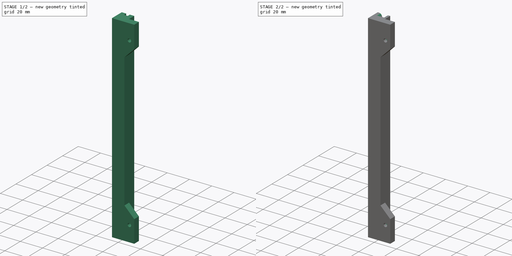
[diagram: build sequence overview — one tinted view per stage of 2, left to right]
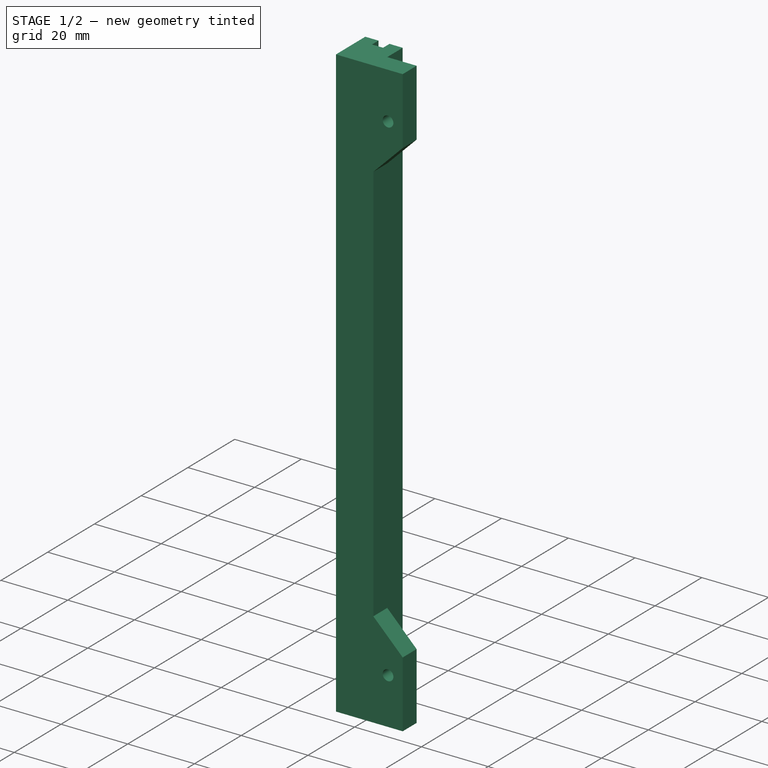
[diagram: stage 1 of 2 — iso view after this stage's code; geometry added in this stage tinted green]
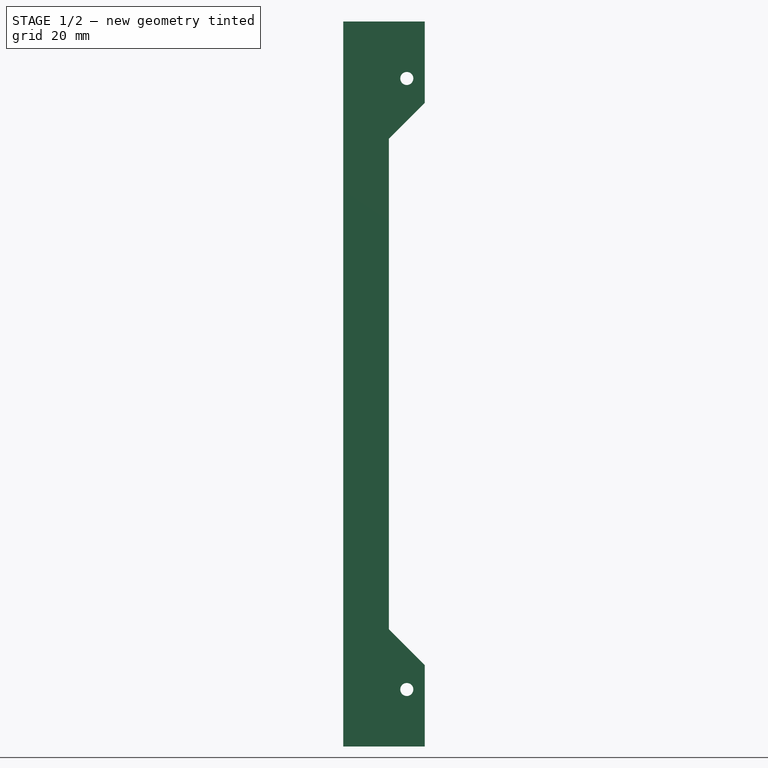
[diagram: stage 1 of 2 — front view after this stage's code; geometry added in this stage tinted green]
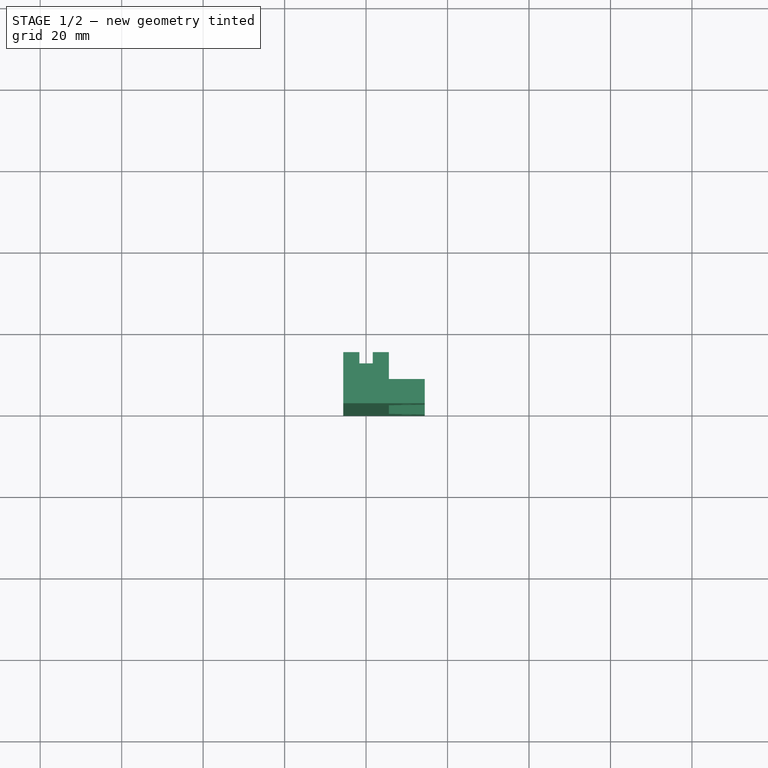
[diagram: stage 1 of 2 — top view after this stage's code; geometry added in this stage tinted green]
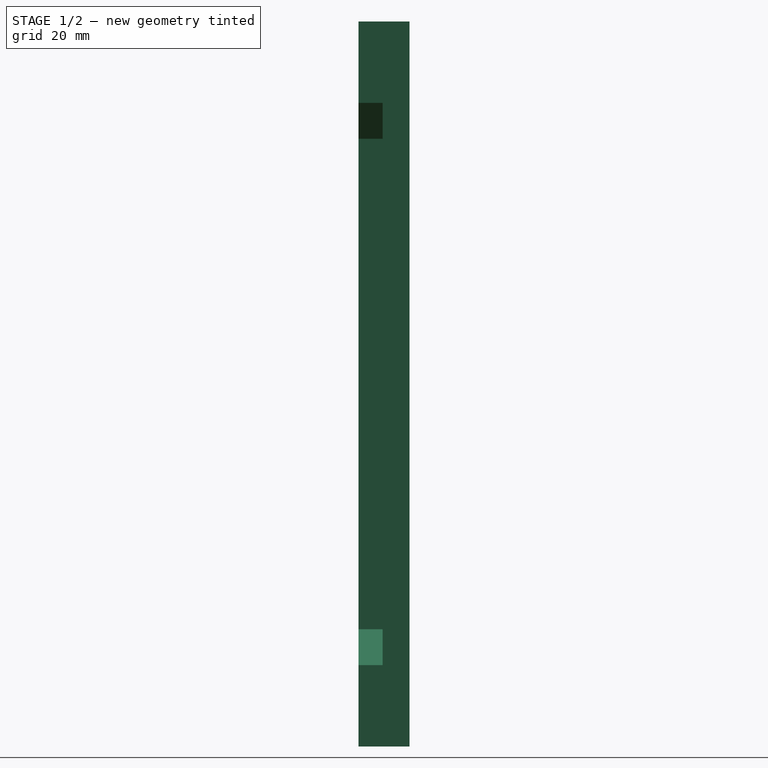
[diagram: stage 1 of 2 — right view after this stage's code; geometry added in this stage tinted green]
FCSTD DOCUMENT  (FreeCAD 0.18R16146 (Git))
Label: 3mm_178mm_150mm_slide_rail
License: All rights reserved
LicenseURL: http://en.wikipedia.org/wiki/All_rights_reserved
objects: Sketcher::SketchObject×3, PartDesign::Pocket×2, PartDesign::Pad×1, PartDesign::Plane×1, PartDesign::Fillet×1, PartDesign::Body×1
note: 12 computed .brp shape members not serialized (recipe doc carries the construction recipe); baked Part::Feature solids carry a one-line shape summary decoded from their .brp

FEATURE [Sketcher::SketchObject] Sketch
  MapMode = 5
  Support = -> [XY_Plane]
  expr: Constraints[39] = Constraints.wall_thickness + 2mm
  expr: Constraints[37] = Constraints.wall_thickness
  sketch-geometry (17):
    g0: LineSegment StartX=-5.6 StartY=0 StartZ=0 EndX=14.4 EndY=0 EndZ=0
    g1: LineSegment [constr] StartX=14.4 StartY=0 StartZ=0 EndX=14.4 EndY=12.55 EndZ=0
    g2: LineSegment [constr] StartX=14.4 StartY=12.55 StartZ=0 EndX=-5.6 EndY=12.55 EndZ=0
    g3: LineSegment StartX=-5.6 StartY=12.55 StartZ=0 EndX=-5.6 EndY=0 EndZ=0
    g4: LineSegment [constr] StartX=-1.65 StartY=12.55 StartZ=0 EndX=1.65 EndY=12.55 EndZ=0
    g5: LineSegment StartX=1.65 StartY=12.55 StartZ=0 EndX=1.65 EndY=9.8 EndZ=0
    g6: LineSegment StartX=1.65 StartY=9.8 StartZ=0 EndX=-1.65 EndY=9.8 EndZ=0
    g7: LineSegment StartX=-1.65 StartY=9.8 StartZ=0 EndX=-1.65 EndY=12.55 EndZ=0
    g8: LineSegment [constr] StartX=5.6 StartY=12.55 StartZ=0 EndX=14.4 EndY=12.55 EndZ=0
    g9: LineSegment [constr] StartX=14.4 StartY=12.55 StartZ=0 EndX=14.4 EndY=5.95 EndZ=0
    g10: LineSegment StartX=14.4 StartY=5.95 StartZ=0 EndX=5.6 EndY=5.95 EndZ=0
    g11: LineSegment StartX=5.6 StartY=5.95 StartZ=0 EndX=5.6 EndY=12.55 EndZ=0
    g12: LineSegment StartX=-5.6 StartY=12.55 StartZ=0 EndX=-1.65 EndY=12.55 EndZ=0
    g13: LineSegment StartX=1.65 StartY=12.55 StartZ=0 EndX=5.6 EndY=12.55 EndZ=0
    g14: LineSegment StartX=14.4 StartY=5.95 StartZ=0 EndX=14.4 EndY=0 EndZ=0
    g15: GeomPoint X=10 Y=5.95 Z=0
    g16: GeomPoint X=6.4 Y=5.95 Z=0
  constraints (47):
    c: Coincident(g0,g1)
    c: Coincident(g1,g2)
    c: Coincident(g2,g3)
    c: Coincident(g3,g0)
    c: Horizontal(g0)
    c: Horizontal(g2)
    c: Vertical(g1)
    c: Vertical(g3)
    c: Coincident(g4,g5)
    c: Coincident(g5,g6)
    c: Coincident(g6,g7)
    c: Coincident(g7,g4)
    c: Horizontal(g4)
    c: Vertical(g5)
    c: Vertical(g7)
    c: PointOnObject(g4,g2)
    c: Coincident(g8,g9)
    c: Coincident(g9,g10)
    c: Coincident(g10,g11)
    c: Coincident(g11,g8)
    c: Horizontal(g8)
    c: Horizontal(g10)
    c: Vertical(g9)
    c: Vertical(g11)
    c: PointOnObject(g8,g2)
    c: PointOnObject(g9,g1)
    c: Coincident(g12,g3)
    c: Coincident(g12,g7)
    c: Coincident(g13,g5)
    c: Coincident(g13,g11)
    c: Symmetric(g5,g6,g-2)
    c: DistanceX(g6,g6) = 3.3  'grove'
    c: Coincident(g14,g10)
    c: Coincident(g14,g0)
    c: PointOnObject(g-1,g0)
    c: DistanceY(g-1,g6) = 9.8
    c: DistanceX(g12,g12) = 3.95  'wall_thickness'
    c: DistanceX(g13,g13) = 3.95
    c: DistanceY(g7,g7) = 2.75
    c: DistanceY(g14,g14) = 5.95
    c: Symmetric(g10,g10,g15)
    c: DistanceX(g-1,g15) = 10  'offset'
    c: PointOnObject(g16,g10)
    c: DistanceX(g16,g10) = 8  'tab_size'
    c: DistanceX(g0,g0) = 20
    c: DistanceX(g10,g16) = 0.8
    c: DistanceY(g3,g3) = 12.55
FEATURE [PartDesign::Pad] Pad
  Length = 178
  Length2 = 100
  Profile = -> Sketch
  Reversed = true
  Type = 0
  expr: Length = 178mm
FEATURE [Sketcher::SketchObject] Sketch001
  ExternalGeometry = -> [Pad]
  MapMode = 5
  Placement = pos=(0,0,0) rot=(1,0,0;1.5708rad)
  Support = -> [Pad]
  expr: Constraints[19] = Constraints.pad_taper
  expr: Constraints[15] = Sketch.Constraints.grove / 2 + Sketch.Constraints.wall_thickness
  expr: Constraints[17] = Constraints.pad_len
  expr: Constraints[9] = Sketch.Constraints.offset
  sketch-geometry (7):
    g0: LineSegment StartX=14.4 StartY=-158 StartZ=0 EndX=5.6 EndY=-149.2 EndZ=0
    g1: LineSegment StartX=5.6 StartY=-149.2 StartZ=0 EndX=5.6 EndY=-28.8 EndZ=0
    g2: LineSegment StartX=5.6 StartY=-28.8 StartZ=0 EndX=14.4 EndY=-20 EndZ=0
    g3: LineSegment StartX=14.4 StartY=-20 StartZ=0 EndX=14.4 EndY=-158 EndZ=0
    g4: Circle CenterX=10 CenterY=-164 CenterZ=0 NormalX=0 NormalY=0 NormalZ=1 AngleXU=0 Radius=1.6
    g5: Circle CenterX=10 CenterY=-14 CenterZ=0 NormalX=0 NormalY=0 NormalZ=1 AngleXU=0 Radius=1.6
    g6: LineSegment [constr] StartX=0 StartY=-89 StartZ=0 EndX=14.4 EndY=-89 EndZ=0
  constraints (21):
    c: Coincident(g0,g1)
    c: Coincident(g1,g2)
    c: Coincident(g2,g3)
    c: Coincident(g3,g0)
    c: Vertical(g1)
    c: Vertical(g3)
    c: PointOnObject(g0,g-3)
    c: Diameter(g4) = 3.2
    c: Equal(g4,g5) = 3.2
    c: DistanceX(g-1,g4) = 10
    c: DistanceY(g4,g5) = 150
    c: DistanceY(g-5,g-4) = 178
    c: PointOnObject(g6,g-2)
    c: Symmetric(g-4,g-5,g6)
    c: Symmetric(g4,g5,g6)
    c: DistanceX(g-1,g1) = 5.6
    c: DistanceY(g2,g-4) = 20  'pad_len'
    c: DistanceY(g-5,g0) = 20
    c: Angle(g2,g3) = 0.785398  'pad_taper'
    c: Angle(g3,g0) = 0.785398
    c: PointOnObject(g6,g3)
FEATURE [PartDesign::Pocket] Pocket
  BaseFeature = -> Pad
  Length = 5
  Length2 = 100
  Profile = -> Sketch001
  Type = 1
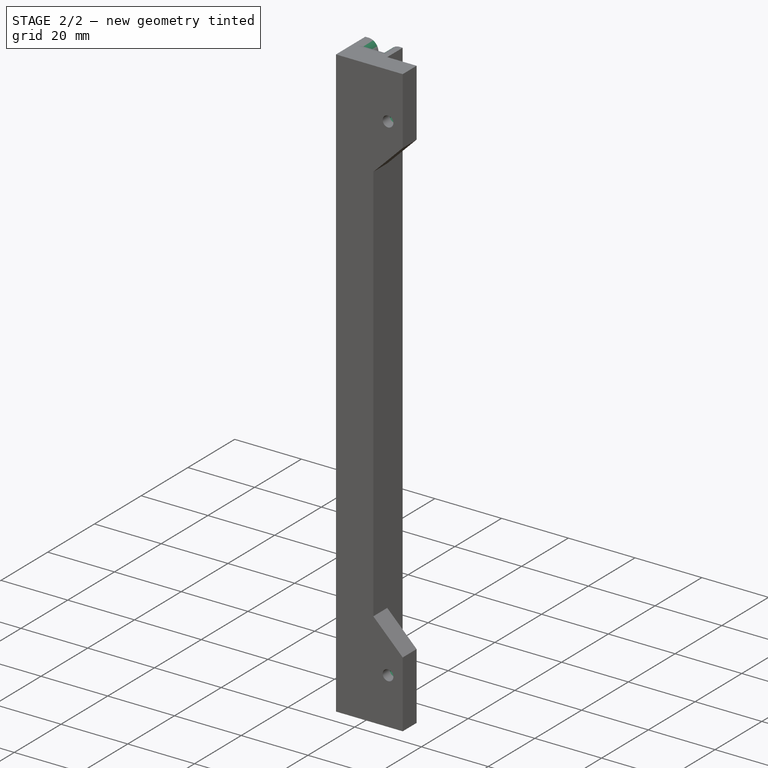
[diagram: stage 2 of 2 — iso view after this stage's code; geometry added in this stage tinted green]
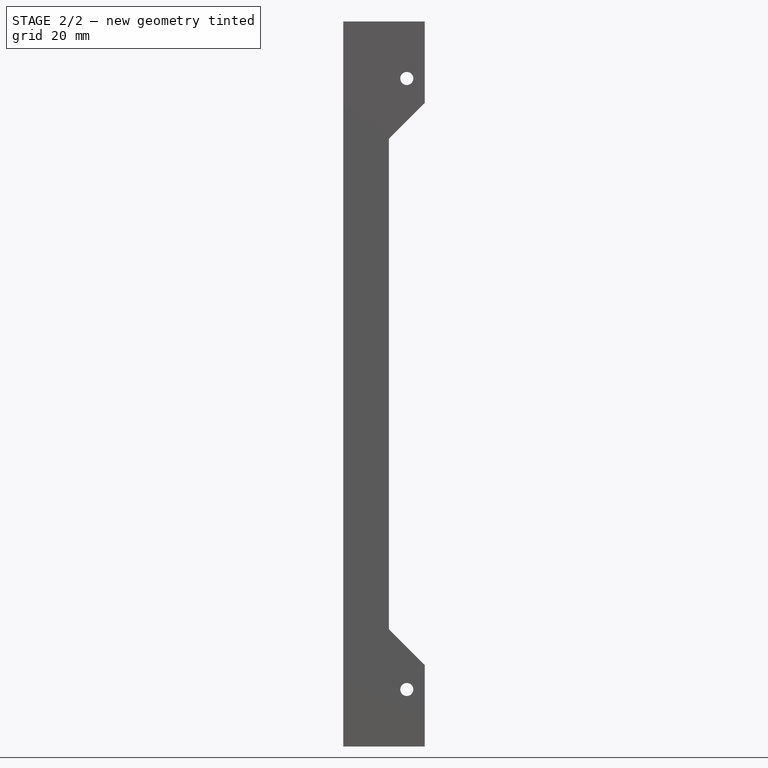
[diagram: stage 2 of 2 — front view after this stage's code; geometry added in this stage tinted green]
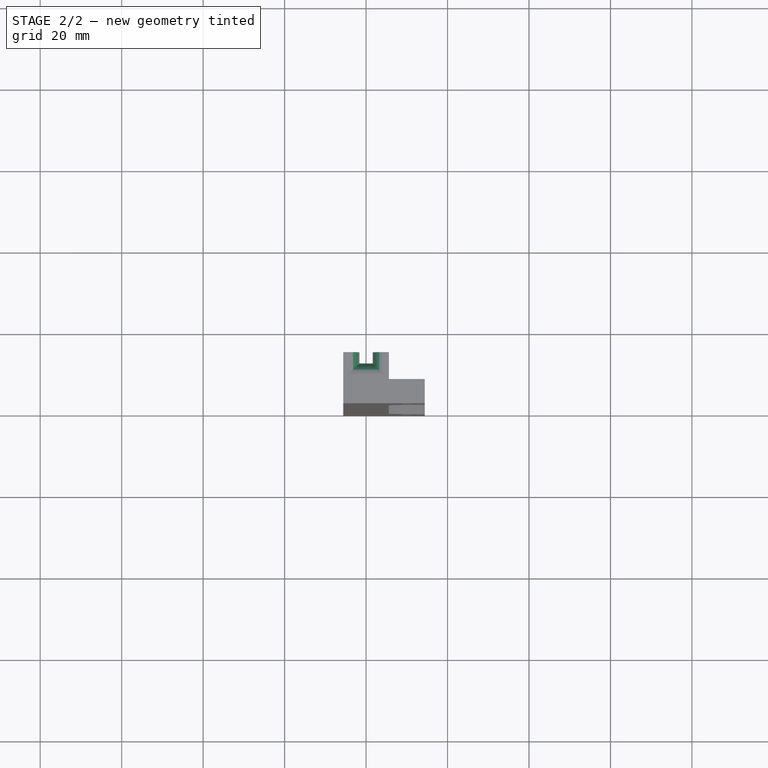
[diagram: stage 2 of 2 — top view after this stage's code; geometry added in this stage tinted green]
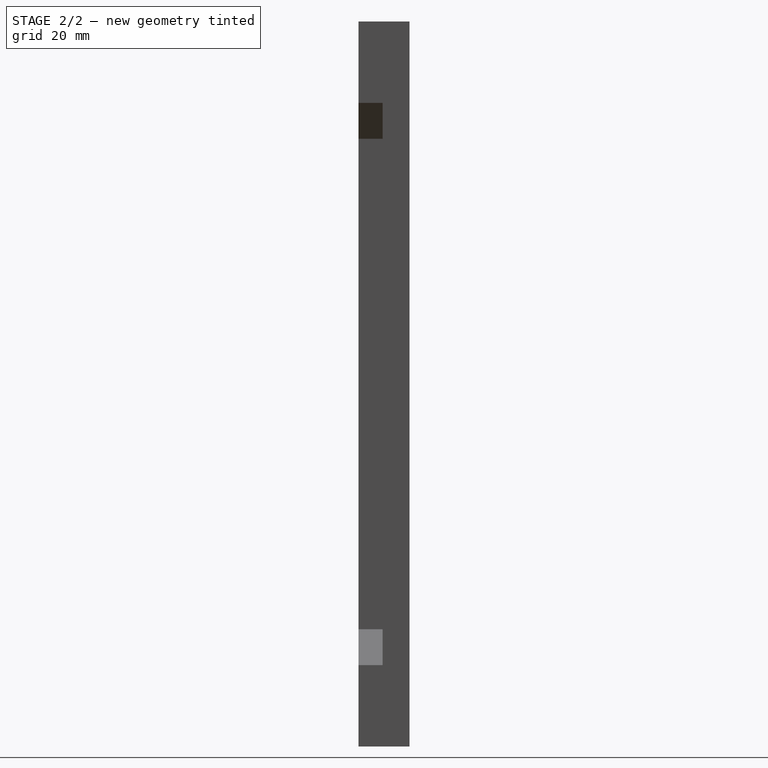
[diagram: stage 2 of 2 — right view after this stage's code; geometry added in this stage tinted green]
FEATURE [PartDesign::Plane] DatumPlane
  AttachmentOffset = pos=(0,0,3) rot=(0,0,1;0rad)
  Length = 37.9458
  MapMode = 5
  Placement = pos=(0,3,-7e-16) rot=(0,0.707107,0.707107;3.14159rad)
  ResizeMode = 0
  Support = -> [Pocket]
  Width = 201.546
FEATURE [Sketcher::SketchObject] Sketch003
  ExternalGeometry = -> [Pocket]
  MapMode = 5
  Placement = pos=(0,3,-7e-16) rot=(0,0.707107,0.707107;3.14159rad)
  Support = -> [DatumPlane]
  expr: Constraints[19] = Constraints.M3_nut_short
  sketch-geometry (14):
    g0: LineSegment StartX=-7.2 StartY=-15.6166 StartZ=0 EndX=-7.2 EndY=-12.3834 EndZ=0
    g1: LineSegment StartX=-7.2 StartY=-12.3834 StartZ=0 EndX=-10 EndY=-10.7668 EndZ=0
    g2: LineSegment StartX=-10 StartY=-10.7668 StartZ=0 EndX=-12.8 EndY=-12.3834 EndZ=0
    g3: LineSegment StartX=-12.8 StartY=-12.3834 StartZ=0 EndX=-12.8 EndY=-15.6166 EndZ=0
    g4: LineSegment StartX=-12.8 StartY=-15.6166 StartZ=0 EndX=-10 EndY=-17.2332 EndZ=0
    g5: LineSegment StartX=-10 StartY=-17.2332 StartZ=0 EndX=-7.2 EndY=-15.6166 EndZ=0
    g6: Circle [constr] CenterX=-10 CenterY=-14 CenterZ=0 NormalX=0 NormalY=0 NormalZ=1 AngleXU=0 Radius=3.23316
    g7: LineSegment StartX=-7.2 StartY=-165.617 StartZ=0 EndX=-7.2 EndY=-162.383 EndZ=0
    g8: LineSegment StartX=-7.2 StartY=-162.383 StartZ=0 EndX=-10 EndY=-160.767 EndZ=0
    g9: LineSegment StartX=-10 StartY=-160.767 StartZ=0 EndX=-12.8 EndY=-162.383 EndZ=0
    g10: LineSegment StartX=-12.8 StartY=-162.383 StartZ=0 EndX=-12.8 EndY=-165.617 EndZ=0
    g11: LineSegment StartX=-12.8 StartY=-165.617 StartZ=0 EndX=-10 EndY=-167.233 EndZ=0
    g12: LineSegment StartX=-10 StartY=-167.233 StartZ=0 EndX=-7.2 EndY=-165.617 EndZ=0
    g13: Circle [constr] CenterX=-10 CenterY=-164 CenterZ=0 NormalX=0 NormalY=0 NormalZ=1 AngleXU=0 Radius=3.23316
  constraints (32):
    c: Coincident(g0,g1)
    c: Coincident(g1,g2)
    c: Coincident(g2,g3)
    c: Coincident(g3,g4)
    c: Coincident(g4,g5)
    c: Coincident(g5,g0)
    c: Equal(g0, g1-g5) x5
    c: PointOnObject(g0,g6)
    c: PointOnObject(g1,g6)
    c: PointOnObject(g2,g6)
    c: PointOnObject(g3,g6)
    c: PointOnObject(g4,g6)
    c: PointOnObject(g5,g6)
    c: Coincident(g6,g-3)
    c: Vertical(g0)
    c: DistanceX(g2,g0) = 5.6
    c: Coincident(g7,g8)
    c: Coincident(g8,g9)
    c: Coincident(g9,g10)
    c: Coincident(g10,g11)
    c: Coincident(g11,g12)
    c: Coincident(g12,g7)
    c: Equal(g7, g8-g12) x5
    c: PointOnObject(g7,g13)
    c: PointOnObject(g8,g13)
    c: PointOnObject(g9,g13)
    c: PointOnObject(g10,g13)
    c: PointOnObject(g11,g13)
    c: PointOnObject(g12,g13)
    c: Vertical(g7)
    c: DistanceX(g9,g7) = 5.6  'M3_nut_short'
    c: Coincident(g13,g-4)
FEATURE [PartDesign::Pocket] Pocket002
  BaseFeature = -> Pocket
  Length = 5
  Length2 = 100
  Profile = -> Sketch003
  Reversed = true
  Type = 0
FEATURE [PartDesign::Fillet] Fillet
  Base = -> Pocket002 [Edge13,Edge11,Edge3,Edge12,Edge20,Edge4]
  BaseFeature = -> Pocket002
  Radius = 3
FEATURE [PartDesign::Body] Body
  Group = -> [Sketch,Pad,Sketch001,Pocket,DatumPlane,Sketch003,Pocket002,Fillet]
  Origin = -> Origin
  Tip = -> Fillet
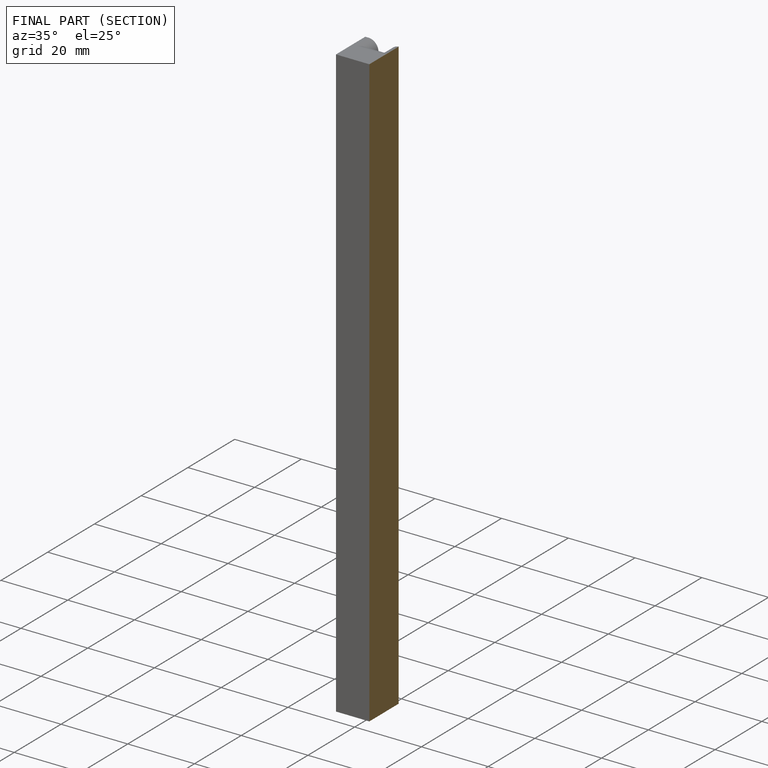
[diagram: finished part — half-section view (interior)]
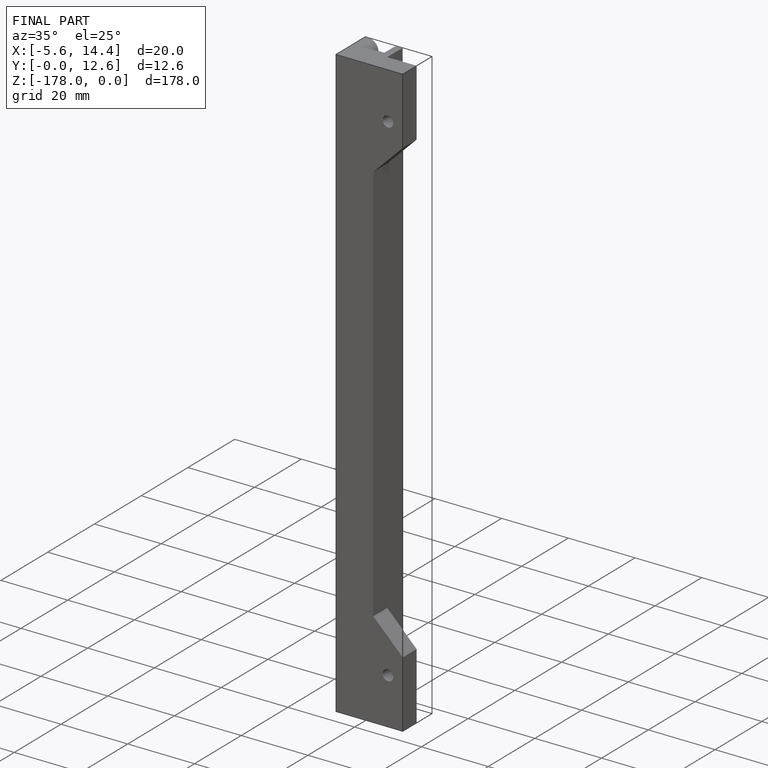
[diagram: finished part — iso view with bounding-box wireframe]
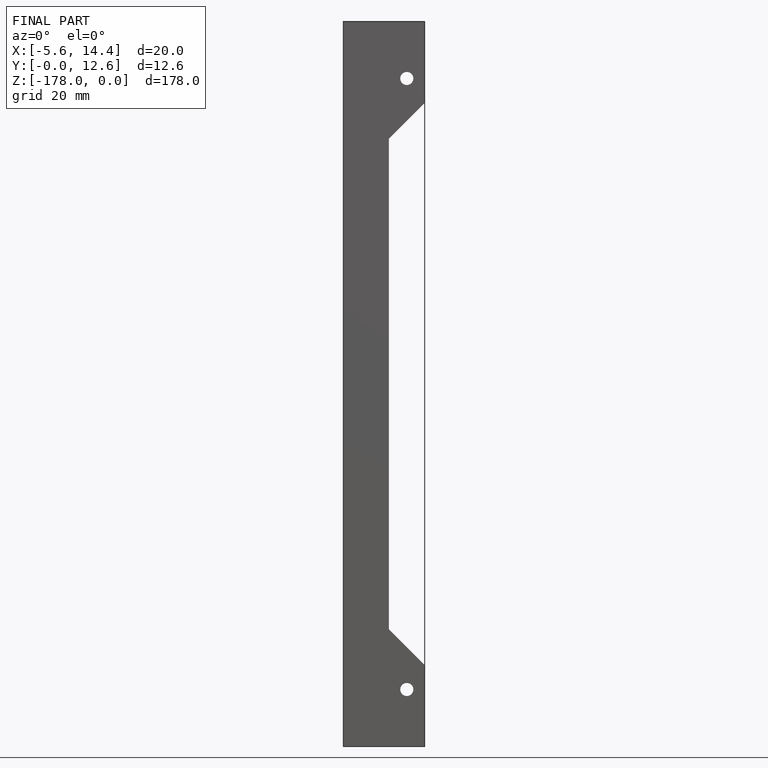
[diagram: finished part — front view with bounding-box wireframe]
